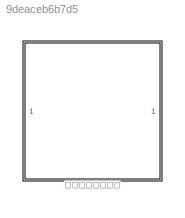
MODEL slx_9deaceb6b7d5
KIND model
CONFIG AbsTol = auto
CONFIG EnableMultiTasking = off
CONFIG FixedStep = auto
CONFIG MaxStep = auto
CONFIG MinStep = auto
CONFIG RelTol = 1e-3
CONFIG SampleTimeConstraint = Unconstrained
CONFIG SolverName = VariableStepAuto
CONFIG StartTime = 0.0
CONFIG StopTime = 10.0
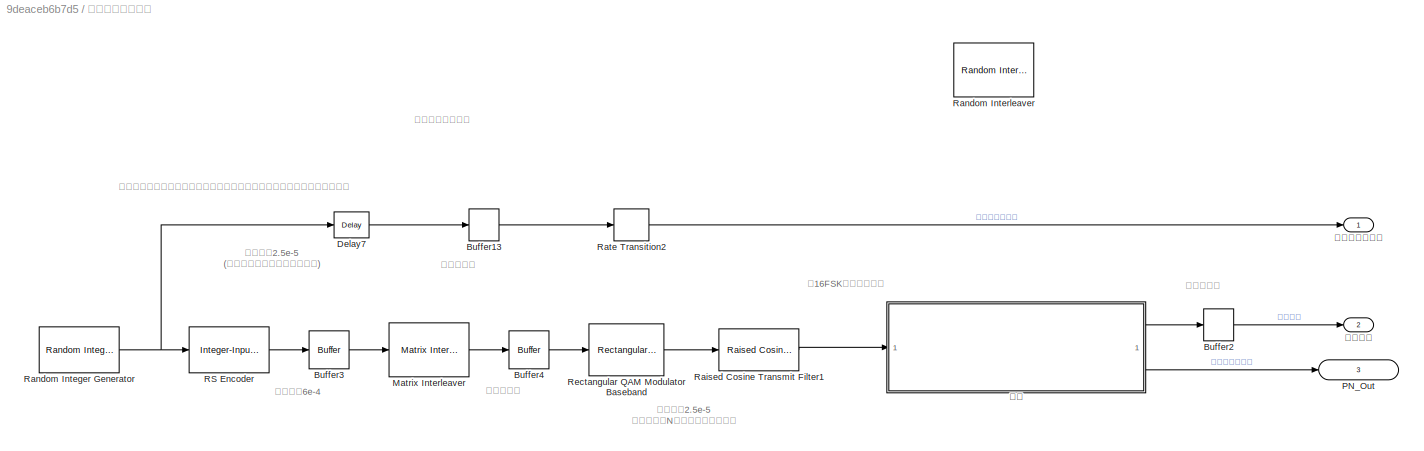
BLOCK [SubSystem] 信源部分基带调制
  AttributesFormatString = 信源随机码序列=%<Delay_SourceRand>\n信源信号时延=%<Delay_SignalSource>\n接收端跳频载波时延=%<Delay_HopFreq>\n信源随机码采样速率=%<T_SourceRand>\n信源信号采样速率=%<T_SignalSource>\n接收端跳频载波采样速率=%<T_HopFreq>
  InitFcn = ModelInitial(mdel,'信源部分基带调制',CodeTs,CarrierTs,SignalSourceTs)
  TreatAsAtomicUnit = on
BLOCK [Buffer] 信源部分基带调制/Buffer13
  N = 1
  OutputFrames = off
BLOCK [Buffer] 信源部分基带调制/Buffer2
  N = 1
  OutputFrames = off
BLOCK [Buffer] 信源部分基带调制/Buffer3
  N = 120
  OutputFrames = off
BLOCK [Buffer] 信源部分基带调制/Buffer4
  N = M
  OutputFrames = off
BLOCK [Reference] 信源部分基带调制/Delay7  REF=dspobslib/Delay
  SourceBlock = dspobslib/Delay
  SourceType = Delay
  UserDataPersistent = on
BLOCK [Reference] 信源部分基带调制/Matrix Interleaver  REF=commblkintrlv2/Matrix
Interleaver
  SourceBlock = commblkintrlv2/Matrix\nInterleaver
  SourceType = Matrix Interleaver
  StatePerturbationForJacobian = 1.0e-05
BLOCK [Outport] 信源部分基带调制/PN_Out
  IconDisplay = Signal name
  Port = 3
BLOCK [Reference] 信源部分基带调制/RS Encoder  REF=commblkcod2/Integer-Input
RS Encoder
  SourceBlock = commblkcod2/Integer-Input\nRS Encoder
  SourceType = Integer-Input RS Encoder
BLOCK [Reference] 信源部分基带调制/Raised Cosine Transmit Filter1  REF=commfilt2/Raised Cosine
Transmit Filter
  SourceBlock = commfilt2/Raised Cosine\nTransmit Filter
  SourceType = Raised Cosine Transmit Filter
BLOCK [Reference] 信源部分基带调制/Random Integer Generator  REF=commrandsrc3/Random Integer
Generator
  SourceBlock = commrandsrc3/Random Integer\nGenerator
  SourceType = Random Integer Generator
BLOCK [Reference] 信源部分基带调制/Random Interleaver  REF=commblkintrlv2/Random
Interleaver
  Commented = on
  SourceBlock = commblkintrlv2/Random\nInterleaver
  SourceType = Random Interleaver
  StatePerturbationForJacobian = 1.0e-05
BLOCK [RateTransition] 信源部分基带调制/Rate Transition2
  OutPortSampleTime = CarrierTs
BLOCK [Reference] 信源部分基带调制/Rectangular QAM Modulator Baseband  REF=commdigbbndam3/Rectangular QAM
Modulator
Baseband
  LibrarySourceBlock = commhdldigbbndam/Rectangular QAM\nModulator\nBaseband
  SourceBlock = commdigbbndam3/Rectangular QAM\nModulator\nBaseband
  SourceType = Rectangular QAM Modulator Baseband
BLOCK [Outport] 信源部分基带调制/信源信号
  Port = 2
BLOCK [Outport] 信源部分基带调制/信源随机码序列
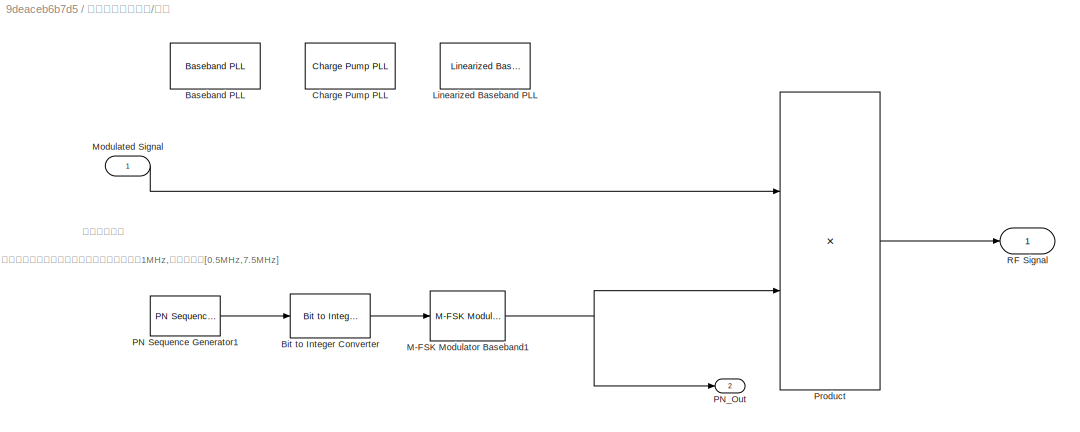
BLOCK [SubSystem] 信源部分基带调制/跳频
  AttributesFormatString = 输出信号的采样时间=%<T_input>\n一帧中最小采样单位时间是=%<T_min>
BLOCK [Reference] 信源部分基带调制/跳频/Baseband PLL  REF=commsynccomp2/Baseband
PLL
  Commented = on
  SourceBlock = commsynccomp2/Baseband\nPLL
  SourceType = Baseband PLL
BLOCK [Reference] 信源部分基带调制/跳频/Bit to Integer Converter  REF=simulink/Logic and Bit
Operations/Bit to Integer
Converter
  SourceBlock = simulink/Logic and Bit\nOperations/Bit to Integer\nConverter
  SourceType = Bit to Integer Converter
BLOCK [Reference] 信源部分基带调制/跳频/Charge Pump PLL  REF=commsynccomp2/Charge Pump
PLL
  Commented = on
  SourceBlock = commsynccomp2/Charge Pump\nPLL
  SourceType = Charge Pump PLL
BLOCK [Reference] 信源部分基带调制/跳频/Linearized Baseband PLL  REF=commsynccomp2/Linearized Baseband
PLL
  Commented = on
  SourceBlock = commsynccomp2/Linearized Baseband\nPLL
  SourceType = Linearized Baseband PLL
BLOCK [Reference] 信源部分基带调制/跳频/M-FSK Modulator Baseband1  REF=commdigbbndfm2/M-FSK
Modulator
Baseband
  SourceBlock = commdigbbndfm2/M-FSK\nModulator\nBaseband
  SourceType = M-FSK Modulator Baseband
  UserDataPersistent = on
BLOCK [Inport] 信源部分基带调制/跳频/Modulated Signal
BLOCK [Reference] 信源部分基带调制/跳频/PN Sequence Generator1  REF=commseqgen3/PN Sequence
Generator
  SourceBlock = commseqgen3/PN Sequence\nGenerator
  SourceType = PN Sequence Generator
BLOCK [Outport] 信源部分基带调制/跳频/PN_Out
  Port = 2
BLOCK [Product] 信源部分基带调制/跳频/Product
BLOCK [Outport] 信源部分基带调制/跳频/RF Signal
ANNOTATION 信源部分基带调制: 信源部分基带调制
ANNOTATION 信源部分基带调制: 此处延时2.5e-5 (此处的延时不计入模块延时中)
ANNOTATION 信源部分基带调制: 以16FSK模拟跳频系统
ANNOTATION 信源部分基带调制: 此处延时2.5e-5 该滤波器的N在模块初始化中定义
ANNOTATION 信源部分基带调制: 此处延时6e-4
ANNOTATION 信源部分基带调制: 此处无延时
ANNOTATION 信源部分基带调制: 该条支路对发送端的随机码序列进行同步时域处理，用于判断链路的误码率
ANNOTATION 信源部分基带调制/跳频: 产生跳频序列，并生成基带跳频，跳频间隔是1MHz,跳频范围是[0.5MHz,7.5MHz]
ANNOTATION 信源部分基带调制/跳频: 跳频基带信号
LINE 信源部分基带调制/Buffer13:1 -> 信源部分基带调制/Rate Transition2:1
LINE 信源部分基带调制/Buffer2:1 -> 信源部分基带调制/信源信号:1
LINE 信源部分基带调制/Buffer3:1 -> 信源部分基带调制/Matrix Interleaver:1
LINE 信源部分基带调制/Buffer4:1 -> 信源部分基带调制/Rectangular QAM Modulator Baseband:1
LINE 信源部分基带调制/Delay7:1 -> 信源部分基带调制/Buffer13:1
LINE 信源部分基带调制/Matrix Interleaver:1 -> 信源部分基带调制/Buffer4:1
LINE 信源部分基带调制/RS Encoder:1 -> 信源部分基带调制/Buffer3:1
LINE 信源部分基带调制/Raised Cosine Transmit Filter1:1 -> 信源部分基带调制/跳频:1
NET 信源部分基带调制/Random Integer Generator:1 -> 信源部分基带调制/Delay7:1, 信源部分基带调制/RS Encoder:1
LINE 信源部分基带调制/Rate Transition2:1 -> 信源部分基带调制/信源随机码序列:1
LINE 信源部分基带调制/Rectangular QAM Modulator Baseband:1 -> 信源部分基带调制/Raised Cosine Transmit Filter1:1
LINE 信源部分基带调制/跳频/Bit to Integer Converter:1 -> 信源部分基带调制/跳频/M-FSK Modulator Baseband1:1
NET 信源部分基带调制/跳频/M-FSK Modulator Baseband1:1 -> 信源部分基带调制/跳频/PN_Out:1, 信源部分基带调制/跳频/Product:2
LINE 信源部分基带调制/跳频/Modulated Signal:1 -> 信源部分基带调制/跳频/Product:1
LINE 信源部分基带调制/跳频/PN Sequence Generator1:1 -> 信源部分基带调制/跳频/Bit to Integer Converter:1
LINE 信源部分基带调制/跳频/Product:1 -> 信源部分基带调制/跳频/RF Signal:1
LINE 信源部分基带调制/跳频:1 -> 信源部分基带调制/Buffer2:1
LINE 信源部分基带调制/跳频:2 -> 信源部分基带调制/PN_Out:1
note: NET lines group one-source signal fan-out (src -> all destinations, sorted); 1:1 wires keep LINE
